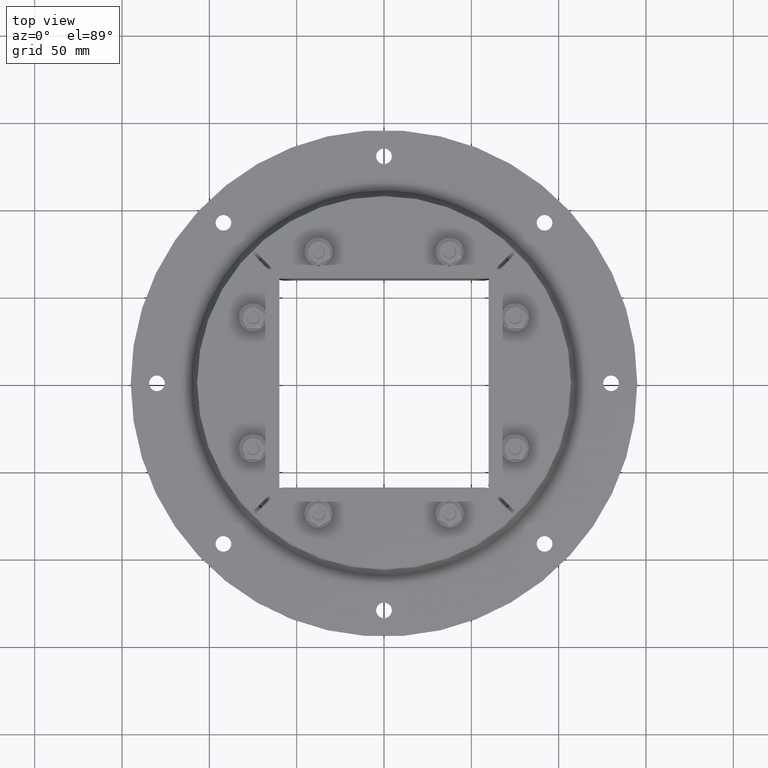
[diagram: clean part render]
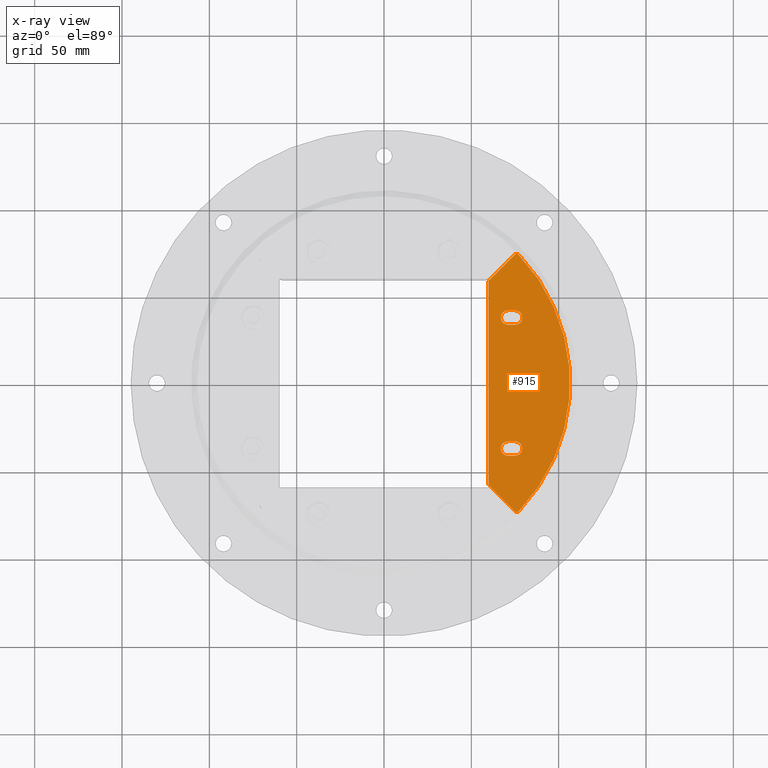
[diagram: x-ray — body ghosted, one internal face saturated and labeled with its STEP entity id]
A machine part, top view, then the same camera in x-ray: the body is ghosted and one INTERNAL B-rep face — a face not visible from any outside direction — is saturated and labeled: STEP entity #915.
In plain terms, the highlighted planar face has unit normal (0, 0, 1).
Its self-contained STEP definition (entity closure, byte-faithful):
#715=CARTESIAN_POINT('',(73.518057415331043,74.932270977704164,-5.0));
#716=VERTEX_POINT('',#715);
#717=CARTESIAN_POINT('',(73.49250291845911,77.078544451619479,-5.0));
#718=VERTEX_POINT('',#717);
#719=CARTESIAN_POINT('',(72.457397243551242,75.992931149483979,-5.0));
#720=DIRECTION('',(0.0,0.0,1.0));
#721=DIRECTION('',(0.999929125764814,0.011905605705463,0.0));
#722=AXIS2_PLACEMENT_3D('',#719,#720,#721);
#723=CIRCLE('',#722,1.5);
#724=EDGE_CURVE('',#716,#718,#723,.T.);
#758=CARTESIAN_POINT('',(-73.49250291845911,77.078544451619479,-5.0));
#759=VERTEX_POINT('',#758);
#760=CARTESIAN_POINT('',(0.0,0.0,-5.0));
#761=DIRECTION('',(0.0,0.0,-1.0));
#762=DIRECTION('',(-1.0,0.0,0.0));
#763=AXIS2_PLACEMENT_3D('',#760,#761,#762);
#764=CIRCLE('',#763,106.5);
#765=EDGE_CURVE('',#759,#718,#764,.T.);
#785=CARTESIAN_POINT('',(-5.534716E-015,-2.223921E-015,-5.0));
#786=DIRECTION('',(0.0,0.0,1.0));
#787=DIRECTION('',(1.0,0.0,0.0));
#788=AXIS2_PLACEMENT_3D('',#785,#786,#787);
#789=PLANE('',#788);
#790=ORIENTED_EDGE('',*,*,#724,.F.);
#791=CARTESIAN_POINT('',(58.925126265847069,60.33933982822019,-5.0));
#792=VERTEX_POINT('',#791);
#793=CARTESIAN_POINT('',(73.518057415331072,74.932270977704178,-5.0));
#794=DIRECTION('',(-0.707106781186548,-0.707106781186547,0.0));
#795=VECTOR('',#794,20.63752114637705);
#796=LINE('',#793,#795);
#797=EDGE_CURVE('',#716,#792,#796,.T.);
#798=ORIENTED_EDGE('',*,*,#797,.T.);
#799=CARTESIAN_POINT('',(57.86446609406724,59.900000000000013,-5.0));
#800=VERTEX_POINT('',#799);
#801=CARTESIAN_POINT('',(57.864466094067247,61.400000000000013,-5.0));
#802=DIRECTION('',(0.0,0.0,1.0));
#803=DIRECTION('',(0.382683432365087,-0.923879532511288,0.0));
#804=AXIS2_PLACEMENT_3D('',#801,#802,#803);
#805=CIRCLE('',#804,1.5);
#806=EDGE_CURVE('',#800,#792,#805,.T.);
#807=ORIENTED_EDGE('',*,*,#806,.F.);
#808=CARTESIAN_POINT('',(-57.864466094067275,59.900000000000013,-5.0));
#809=VERTEX_POINT('',#808);
#810=CARTESIAN_POINT('',(57.864466094067254,59.900000000000013,-5.0));
#811=DIRECTION('',(-1.0,0.0,0.0));
#812=VECTOR('',#811,115.72893218813454);
#813=LINE('',#810,#812);
#814=EDGE_CURVE('',#800,#809,#813,.T.);
#815=ORIENTED_EDGE('',*,*,#814,.T.);
#816=CARTESIAN_POINT('',(-58.925126265847098,60.339339828220197,-5.0));
#817=VERTEX_POINT('',#816);
#818=CARTESIAN_POINT('',(-57.864466094067275,61.400000000000013,-5.0));
#819=DIRECTION('',(0.0,0.0,1.0));
#820=DIRECTION('',(-0.382683432365086,-0.923879532511288,0.0));
#821=AXIS2_PLACEMENT_3D('',#818,#819,#820);
#822=CIRCLE('',#821,1.5);
#823=EDGE_CURVE('',#817,#809,#822,.T.);
#824=ORIENTED_EDGE('',*,*,#823,.F.);
#825=CARTESIAN_POINT('',(-73.518057415331057,74.932270977704164,-5.0));
#826=VERTEX_POINT('',#825);
#827=CARTESIAN_POINT('',(-58.925126265847091,60.339339828220197,-5.0));
#828=DIRECTION('',(-0.707106781186547,0.707106781186547,0.0));
#829=VECTOR('',#828,20.637521146377026);
#830=LINE('',#827,#829);
#831=EDGE_CURVE('',#817,#826,#830,.T.);
#832=ORIENTED_EDGE('',*,*,#831,.T.);
#833=CARTESIAN_POINT('',(-72.457397243551242,75.992931149483979,-5.0));
#834=DIRECTION('',(0.0,0.0,1.0));
#835=DIRECTION('',(-0.999929125764814,0.011905605705463,0.0));
#836=AXIS2_PLACEMENT_3D('',#833,#834,#835);
#837=CIRCLE('',#836,1.5);
#838=EDGE_CURVE('',#759,#826,#837,.T.);
#839=ORIENTED_EDGE('',*,*,#838,.F.);
#840=ORIENTED_EDGE('',*,*,#765,.T.);
#841=EDGE_LOOP('',(#790,#798,#807,#815,#824,#832,#839,#840));
#842=FACE_OUTER_BOUND('',#841,.T.);
#843=CARTESIAN_POINT('',(41.600000000000009,75.0,-5.0));
#844=VERTEX_POINT('',#843);
#845=CARTESIAN_POINT('',(33.40000000000002,75.0,-5.0));
#846=VERTEX_POINT('',#845);
#847=CARTESIAN_POINT('',(37.500000000000014,75.0,-5.0));
#848=DIRECTION('',(0.0,0.0,1.0));
#849=DIRECTION('',(0.0,1.0,0.0));
#850=AXIS2_PLACEMENT_3D('',#847,#848,#849);
#851=CIRCLE('',#850,4.1);
#852=EDGE_CURVE('',#844,#846,#851,.T.);
#853=ORIENTED_EDGE('',*,*,#852,.T.);
#854=CARTESIAN_POINT('',(33.40000000000002,71.0,-5.0));
#855=VERTEX_POINT('',#854);
#856=CARTESIAN_POINT('',(33.40000000000002,75.0,-5.0));
#857=DIRECTION('',(0.0,-1.0,0.0));
#858=VECTOR('',#857,4.0);
#859=LINE('',#856,#858);
#860=EDGE_CURVE('',#846,#855,#859,.T.);
#861=ORIENTED_EDGE('',*,*,#860,.T.);
#862=CARTESIAN_POINT('',(41.600000000000009,71.0,-5.0));
#863=VERTEX_POINT('',#862);
#864=CARTESIAN_POINT('',(37.500000000000021,71.0,-5.0));
#865=DIRECTION('',(0.0,0.0,1.0));
#866=DIRECTION('',(0.0,-1.0,0.0));
#867=AXIS2_PLACEMENT_3D('',#864,#865,#866);
#868=CIRCLE('',#867,4.1);
#869=EDGE_CURVE('',#855,#863,#868,.T.);
#870=ORIENTED_EDGE('',*,*,#869,.T.);
#871=CARTESIAN_POINT('',(41.600000000000009,71.0,-5.0));
#872=DIRECTION('',(0.0,1.0,0.0));
#873=VECTOR('',#872,4.0);
#874=LINE('',#871,#873);
#875=EDGE_CURVE('',#863,#844,#874,.T.);
#876=ORIENTED_EDGE('',*,*,#875,.T.);
#877=EDGE_LOOP('',(#853,#861,#870,#876));
#878=FACE_BOUND('',#877,.T.);
#879=CARTESIAN_POINT('',(-41.600000000000009,71.0,-5.0));
#880=VERTEX_POINT('',#879);
#881=CARTESIAN_POINT('',(-33.40000000000002,71.0,-5.0));
#882=VERTEX_POINT('',#881);
#883=CARTESIAN_POINT('',(-37.500000000000021,71.0,-5.0));
#884=DIRECTION('',(0.0,0.0,1.0));
#885=DIRECTION('',(0.0,-1.0,0.0));
#886=AXIS2_PLACEMENT_3D('',#883,#884,#885);
#887=CIRCLE('',#886,4.1);
#888=EDGE_CURVE('',#880,#882,#887,.T.);
#889=ORIENTED_EDGE('',*,*,#888,.T.);
#890=CARTESIAN_POINT('',(-33.40000000000002,75.0,-5.0));
#891=VERTEX_POINT('',#890);
#892=CARTESIAN_POINT('',(-33.400000000000027,71.0,-5.0));
#893=DIRECTION('',(0.0,1.0,0.0));
#894=VECTOR('',#893,4.0);
#895=LINE('',#892,#894);
#896=EDGE_CURVE('',#882,#891,#895,.T.);
#897=ORIENTED_EDGE('',*,*,#896,.T.);
#898=CARTESIAN_POINT('',(-41.600000000000009,75.0,-5.0));
#899=VERTEX_POINT('',#898);
#900=CARTESIAN_POINT('',(-37.500000000000014,75.0,-5.0));
#901=DIRECTION('',(0.0,0.0,1.0));
#902=DIRECTION('',(0.0,1.0,0.0));
#903=AXIS2_PLACEMENT_3D('',#900,#901,#902);
#904=CIRCLE('',#903,4.1);
#905=EDGE_CURVE('',#891,#899,#904,.T.);
#906=ORIENTED_EDGE('',*,*,#905,.T.);
#907=CARTESIAN_POINT('',(-41.600000000000009,75.0,-5.0));
#908=DIRECTION('',(0.0,-1.0,0.0));
#909=VECTOR('',#908,4.0);
#910=LINE('',#907,#909);
#911=EDGE_CURVE('',#899,#880,#910,.T.);
#912=ORIENTED_EDGE('',*,*,#911,.T.);
#913=EDGE_LOOP('',(#889,#897,#906,#912));
#914=FACE_BOUND('',#913,.T.);
#915=ADVANCED_FACE('',(#842,#878,#914),#789,.F.);